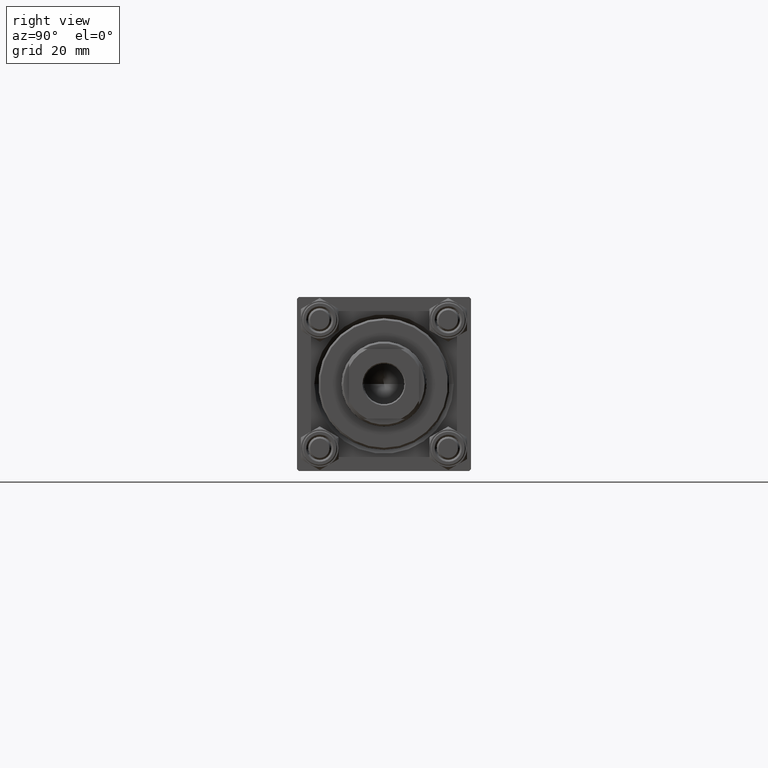
[diagram: clean part render]
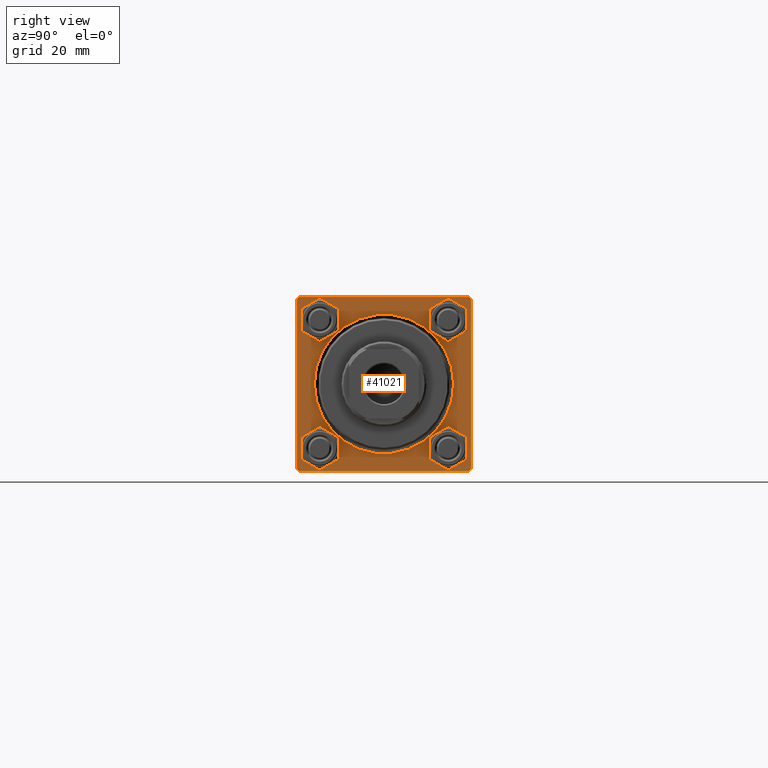
[diagram: same view with one face highlighted and labeled with its STEP entity id]
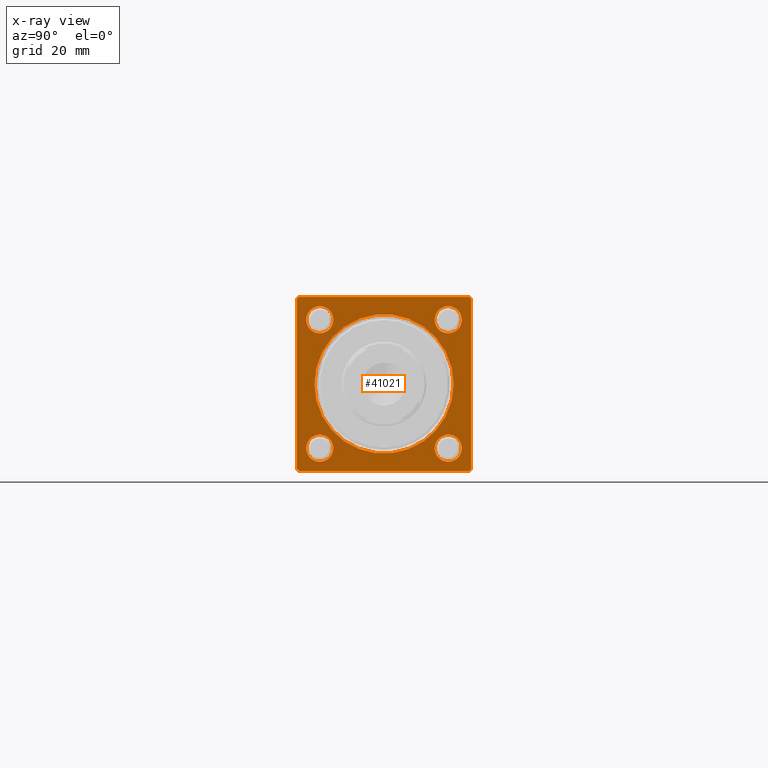
[diagram: x-ray of the same camera — body ghosted, the highlighted face saturated]
A machine part, right view. The second image highlights one B-rep face of the part: STEP entity #41021.
The next image is the same camera in x-ray: the body ghosted, the highlighted face saturated — about 0% of this face is hidden behind the body in this view.
In plain terms, the highlighted planar face has unit normal (-1, 0, -0).
Its self-contained STEP definition (entity closure, byte-faithful):
#72 = AXIS2_PLACEMENT_3D ( 'NONE', #42810, #8394, #39054 ) ;
#338 = DIRECTION ( 'NONE',  ( -1.000000000000000000, 0.000000000000000000, -0.000000000000000000 ) ) ;
#412 = EDGE_CURVE ( 'NONE', #6783, #17887, #46847, .T. ) ;
#778 = CARTESIAN_POINT ( 'NONE',  ( 123.0000000000000142, 22.50000000000000355, -22.49999999999999645 ) ) ;
#889 = ORIENTED_EDGE ( 'NONE', *, *, #28267, .T. ) ;
#1279 = DIRECTION ( 'NONE',  ( 0.000000000000000000, -1.000000000000000000, -7.709882115452476934E-17 ) ) ;
#1864 = EDGE_CURVE ( 'NONE', #10399, #16768, #30447, .T. ) ;
#2045 = CARTESIAN_POINT ( 'NONE',  ( 123.0000000000000142, -16.59999999999999787, 20.10000000000002629 ) ) ;
#2103 = VERTEX_POINT ( 'NONE', #14806 ) ;
#2443 = ORIENTED_EDGE ( 'NONE', *, *, #11817, .F. ) ;
#2541 = CARTESIAN_POINT ( 'NONE',  ( 123.0000000000000142, -21.99999999999998224, -22.50000000000000000 ) ) ;
#2954 = CARTESIAN_POINT ( 'NONE',  ( 123.0000000000000142, 0.000000000000000000, -18.00000000000000355 ) ) ;
#3246 = LINE ( 'NONE', #33926, #35851 ) ;
#3545 = ORIENTED_EDGE ( 'NONE', *, *, #1864, .T. ) ;
#3640 = VERTEX_POINT ( 'NONE', #39633 ) ;
#4103 = CARTESIAN_POINT ( 'NONE',  ( 123.0000000000000142, 16.59999999999999787, -13.09999999999997300 ) ) ;
#4134 = DIRECTION ( 'NONE',  ( -1.000000000000000000, 0.000000000000000000, -0.000000000000000000 ) ) ;
#4185 = EDGE_CURVE ( 'NONE', #37558, #23705, #48530, .T. ) ;
#5583 = EDGE_LOOP ( 'NONE', ( #42220, #889 ) ) ;
#6758 = CIRCLE ( 'NONE', #13989, 3.500000000000031086 ) ;
#6783 = VERTEX_POINT ( 'NONE', #24274 ) ;
#8048 = AXIS2_PLACEMENT_3D ( 'NONE', #41504, #14144, #13894 ) ;
#8057 = ORIENTED_EDGE ( 'NONE', *, *, #48156, .T. ) ;
#8142 = FACE_BOUND ( 'NONE', #26431, .T. ) ;
#8163 = CARTESIAN_POINT ( 'NONE',  ( 123.0000000000000142, 21.99999999999996092, 22.50000000000000355 ) ) ;
#8219 = CARTESIAN_POINT ( 'NONE',  ( 123.0000000000000142, -16.59999999999999787, 16.59999999999999787 ) ) ;
#8315 = EDGE_CURVE ( 'NONE', #2103, #13069, #12559, .T. ) ;
#8394 = DIRECTION ( 'NONE',  ( -1.000000000000000000, 0.000000000000000000, -0.000000000000000000 ) ) ;
#9001 = CARTESIAN_POINT ( 'NONE',  ( 123.0000000000000142, 22.50000000000000355, 21.99999999999997513 ) ) ;
#9090 = AXIS2_PLACEMENT_3D ( 'NONE', #11418, #18715, #34062 ) ;
#9093 = CIRCLE ( 'NONE', #48411, 18.00000000000000355 ) ;
#9819 = CARTESIAN_POINT ( 'NONE',  ( 123.0000000000000142, -16.60000000000000497, -16.60000000000000497 ) ) ;
#10399 = VERTEX_POINT ( 'NONE', #17968 ) ;
#10916 = EDGE_CURVE ( 'NONE', #16768, #6783, #39715, .T. ) ;
#11418 = CARTESIAN_POINT ( 'NONE',  ( 123.0000000000000142, 0.000000000000000000, 0.000000000000000000 ) ) ;
#11432 = CARTESIAN_POINT ( 'NONE',  ( 123.0000000000000142, -21.99999999999999645, -22.50000000000000000 ) ) ;
#11805 = CARTESIAN_POINT ( 'NONE',  ( 123.0000000000000142, 0.000000000000000000, 0.000000000000000000 ) ) ;
#11817 = EDGE_CURVE ( 'NONE', #26687, #23705, #3246, .T. ) ;
#12559 = CIRCLE ( 'NONE', #31830, 3.500000000000031086 ) ;
#13069 = VERTEX_POINT ( 'NONE', #33478 ) ;
#13305 = CARTESIAN_POINT ( 'NONE',  ( 123.0000000000000142, 21.99999999999996092, 22.50000000000000355 ) ) ;
#13337 = CIRCLE ( 'NONE', #41402, 3.499999999999989342 ) ;
#13403 = VERTEX_POINT ( 'NONE', #33172 ) ;
#13541 = CARTESIAN_POINT ( 'NONE',  ( 123.0000000000000142, -16.59999999999999787, 13.09999999999996589 ) ) ;
#13894 = DIRECTION ( 'NONE',  ( 0.000000000000000000, 0.000000000000000000, 1.000000000000000000 ) ) ;
#13989 = AXIS2_PLACEMENT_3D ( 'NONE', #25577, #22049, #14267 ) ;
#14144 = DIRECTION ( 'NONE',  ( -1.000000000000000000, 0.000000000000000000, -0.000000000000000000 ) ) ;
#14267 = DIRECTION ( 'NONE',  ( 0.000000000000000000, 0.000000000000000000, 1.000000000000000000 ) ) ;
#14806 = CARTESIAN_POINT ( 'NONE',  ( 123.0000000000000142, -16.60000000000000497, -20.10000000000003340 ) ) ;
#15712 = DIRECTION ( 'NONE',  ( 0.000000000000000000, 0.7071067811865425767, -0.7071067811865525687 ) ) ;
#15927 = CIRCLE ( 'NONE', #44833, 18.00000000000000355 ) ;
#16260 = CARTESIAN_POINT ( 'NONE',  ( 123.0000000000000142, 22.50000000000000355, 22.50000000000000355 ) ) ;
#16768 = VERTEX_POINT ( 'NONE', #21529 ) ;
#17690 = EDGE_LOOP ( 'NONE', ( #32232, #21156 ) ) ;
#17887 = VERTEX_POINT ( 'NONE', #2541 ) ;
#17968 = CARTESIAN_POINT ( 'NONE',  ( 123.0000000000000142, -21.99999999999998224, 22.49999999999999289 ) ) ;
#18000 = EDGE_CURVE ( 'NONE', #37747, #32104, #15927, .T. ) ;
#18461 = CIRCLE ( 'NONE', #28892, 3.500000000000031086 ) ;
#18629 = DIRECTION ( 'NONE',  ( -0.000000000000000000, -0.7071067811865573427, -0.7071067811865378028 ) ) ;
#18715 = DIRECTION ( 'NONE',  ( -1.000000000000000000, 0.000000000000000000, -0.000000000000000000 ) ) ;
#18980 = CARTESIAN_POINT ( 'NONE',  ( 123.0000000000000142, 0.000000000000000000, 0.000000000000000000 ) ) ;
#19088 = ORIENTED_EDGE ( 'NONE', *, *, #45002, .T. ) ;
#19226 = DIRECTION ( 'NONE',  ( 0.000000000000000000, -0.7071067811865573427, 0.7071067811865378028 ) ) ;
#19449 = DIRECTION ( 'NONE',  ( 0.000000000000000000, 0.000000000000000000, 1.000000000000000000 ) ) ;
#19523 = LINE ( 'NONE', #16260, #32386 ) ;
#19620 = VECTOR ( 'NONE', #18629, 1000.000000000000000 ) ;
#20083 = ORIENTED_EDGE ( 'NONE', *, *, #10916, .T. ) ;
#20431 = ORIENTED_EDGE ( 'NONE', *, *, #36954, .T. ) ;
#21125 = DIRECTION ( 'NONE',  ( -1.000000000000000000, 0.000000000000000000, -0.000000000000000000 ) ) ;
#21156 = ORIENTED_EDGE ( 'NONE', *, *, #21472, .T. ) ;
#21472 = EDGE_CURVE ( 'NONE', #28974, #23081, #18461, .T. ) ;
#21529 = CARTESIAN_POINT ( 'NONE',  ( 123.0000000000000142, -22.49999999999999645, 22.00000000000000711 ) ) ;
#21649 = DIRECTION ( 'NONE',  ( -0.000000000000000000, 0.7071067811865573427, 0.7071067811865378028 ) ) ;
#22024 = ORIENTED_EDGE ( 'NONE', *, *, #44246, .T. ) ;
#22049 = DIRECTION ( 'NONE',  ( -1.000000000000000000, 0.000000000000000000, -0.000000000000000000 ) ) ;
#22149 = CARTESIAN_POINT ( 'NONE',  ( 123.0000000000000142, 16.59999999999999787, 20.09999999999999432 ) ) ;
#22488 = CARTESIAN_POINT ( 'NONE',  ( 123.0000000000000142, 16.59999999999999787, -16.60000000000000497 ) ) ;
#22931 = ORIENTED_EDGE ( 'NONE', *, *, #47665, .F. ) ;
#23081 = VERTEX_POINT ( 'NONE', #13541 ) ;
#23474 = FACE_BOUND ( 'NONE', #29685, .T. ) ;
#23705 = VERTEX_POINT ( 'NONE', #49726 ) ;
#24274 = CARTESIAN_POINT ( 'NONE',  ( 123.0000000000000142, -22.49999999999999645, -21.99999999999997868 ) ) ;
#24570 = DIRECTION ( 'NONE',  ( 0.000000000000000000, 0.000000000000000000, 1.000000000000000000 ) ) ;
#24671 = LINE ( 'NONE', #778, #28580 ) ;
#24823 = CARTESIAN_POINT ( 'NONE',  ( 123.0000000000000142, 16.59999999999999787, 16.60000000000000497 ) ) ;
#25577 = CARTESIAN_POINT ( 'NONE',  ( 123.0000000000000142, 16.59999999999999787, -16.60000000000000497 ) ) ;
#25826 = CIRCLE ( 'NONE', #8048, 3.500000000000031086 ) ;
#26079 = EDGE_CURVE ( 'NONE', #23081, #28974, #25826, .T. ) ;
#26269 = PLANE ( 'NONE',  #9090 ) ;
#26431 = EDGE_LOOP ( 'NONE', ( #33844, #19088 ) ) ;
#26669 = CARTESIAN_POINT ( 'NONE',  ( 123.0000000000000142, -22.49999999999999645, 22.00000000000000711 ) ) ;
#26687 = VERTEX_POINT ( 'NONE', #9001 ) ;
#28267 = EDGE_CURVE ( 'NONE', #13069, #2103, #48230, .T. ) ;
#28580 = VECTOR ( 'NONE', #1279, 1000.000000000000000 ) ;
#28630 = DIRECTION ( 'NONE',  ( 0.000000000000000000, 0.000000000000000000, 1.000000000000000000 ) ) ;
#28892 = AXIS2_PLACEMENT_3D ( 'NONE', #8219, #31354, #34879 ) ;
#28934 = DIRECTION ( 'NONE',  ( 0.000000000000000000, 0.000000000000000000, 1.000000000000000000 ) ) ;
#28974 = VERTEX_POINT ( 'NONE', #2045 ) ;
#29060 = CARTESIAN_POINT ( 'NONE',  ( 123.0000000000000142, 2.204364238465235822E-15, 18.00000000000000355 ) ) ;
#29237 = CIRCLE ( 'NONE', #33256, 3.500000000000031086 ) ;
#29685 = EDGE_LOOP ( 'NONE', ( #44719, #31983 ) ) ;
#29920 = DIRECTION ( 'NONE',  ( 0.000000000000000000, -1.000000000000000000, -2.312964634635742957E-16 ) ) ;
#30447 = LINE ( 'NONE', #26669, #19620 ) ;
#30531 = FACE_OUTER_BOUND ( 'NONE', #39013, .T. ) ;
#30874 = CIRCLE ( 'NONE', #34113, 3.499999999999989342 ) ;
#31275 = FACE_BOUND ( 'NONE', #35756, .T. ) ;
#31354 = DIRECTION ( 'NONE',  ( -1.000000000000000000, 0.000000000000000000, -0.000000000000000000 ) ) ;
#31830 = AXIS2_PLACEMENT_3D ( 'NONE', #9819, #21125, #28934 ) ;
#31983 = ORIENTED_EDGE ( 'NONE', *, *, #34103, .T. ) ;
#32104 = VERTEX_POINT ( 'NONE', #29060 ) ;
#32232 = ORIENTED_EDGE ( 'NONE', *, *, #26079, .T. ) ;
#32386 = VECTOR ( 'NONE', #29920, 1000.000000000000000 ) ;
#33172 = CARTESIAN_POINT ( 'NONE',  ( 123.0000000000000142, 16.59999999999999787, -20.10000000000003340 ) ) ;
#33256 = AXIS2_PLACEMENT_3D ( 'NONE', #22488, #338, #19449 ) ;
#33478 = CARTESIAN_POINT ( 'NONE',  ( 123.0000000000000142, -16.60000000000000497, -13.09999999999997300 ) ) ;
#33844 = ORIENTED_EDGE ( 'NONE', *, *, #48718, .T. ) ;
#33926 = CARTESIAN_POINT ( 'NONE',  ( 123.0000000000000142, 22.50000000000000355, 22.50000000000000355 ) ) ;
#33948 = DIRECTION ( 'NONE',  ( -1.000000000000000000, 0.000000000000000000, -0.000000000000000000 ) ) ;
#34062 = DIRECTION ( 'NONE',  ( -0.000000000000000000, 0.000000000000000000, 1.000000000000000000 ) ) ;
#34103 = EDGE_CURVE ( 'NONE', #32104, #37747, #9093, .T. ) ;
#34113 = AXIS2_PLACEMENT_3D ( 'NONE', #43947, #47457, #28630 ) ;
#34879 = DIRECTION ( 'NONE',  ( 0.000000000000000000, 0.000000000000000000, 1.000000000000000000 ) ) ;
#35642 = VECTOR ( 'NONE', #15712, 999.9999999999998863 ) ;
#35756 = EDGE_LOOP ( 'NONE', ( #22024, #20431 ) ) ;
#35851 = VECTOR ( 'NONE', #44967, 1000.000000000000000 ) ;
#36651 = ORIENTED_EDGE ( 'NONE', *, *, #41599, .T. ) ;
#36716 = DIRECTION ( 'NONE',  ( 0.000000000000000000, 0.000000000000000000, -1.000000000000000000 ) ) ;
#36954 = EDGE_CURVE ( 'NONE', #37244, #13403, #6758, .T. ) ;
#37244 = VERTEX_POINT ( 'NONE', #4103 ) ;
#37558 = VERTEX_POINT ( 'NONE', #41743 ) ;
#37747 = VERTEX_POINT ( 'NONE', #2954 ) ;
#38820 = DIRECTION ( 'NONE',  ( 0.000000000000000000, 0.000000000000000000, 1.000000000000000000 ) ) ;
#39013 = EDGE_LOOP ( 'NONE', ( #20083, #48062, #22931, #41997, #2443, #8057, #36651, #3545 ) ) ;
#39054 = DIRECTION ( 'NONE',  ( 0.000000000000000000, 0.000000000000000000, 1.000000000000000000 ) ) ;
#39633 = CARTESIAN_POINT ( 'NONE',  ( 123.0000000000000142, 16.59999999999999787, 13.10000000000001386 ) ) ;
#39715 = LINE ( 'NONE', #43732, #47129 ) ;
#40137 = DIRECTION ( 'NONE',  ( -1.000000000000000000, 0.000000000000000000, -0.000000000000000000 ) ) ;
#40748 = CARTESIAN_POINT ( 'NONE',  ( 123.0000000000000142, 22.50000000000000355, -22.00000000000001066 ) ) ;
#41021 = ADVANCED_FACE ( 'NONE', ( #42557, #31275, #8142, #46587, #23474, #30531 ), #26269, .F. ) ;
#41402 = AXIS2_PLACEMENT_3D ( 'NONE', #24823, #40137, #24570 ) ;
#41504 = CARTESIAN_POINT ( 'NONE',  ( 123.0000000000000142, -16.59999999999999787, 16.59999999999999787 ) ) ;
#41599 = EDGE_CURVE ( 'NONE', #48113, #10399, #19523, .T. ) ;
#41743 = CARTESIAN_POINT ( 'NONE',  ( 123.0000000000000142, 22.00000000000000355, -22.49999999999999645 ) ) ;
#41997 = ORIENTED_EDGE ( 'NONE', *, *, #4185, .T. ) ;
#42091 = LINE ( 'NONE', #8163, #43812 ) ;
#42220 = ORIENTED_EDGE ( 'NONE', *, *, #8315, .T. ) ;
#42557 = FACE_BOUND ( 'NONE', #5583, .T. ) ;
#42810 = CARTESIAN_POINT ( 'NONE',  ( 123.0000000000000142, -16.60000000000000497, -16.60000000000000497 ) ) ;
#43732 = CARTESIAN_POINT ( 'NONE',  ( 123.0000000000000142, -22.49999999999999645, 22.49999999999999289 ) ) ;
#43812 = VECTOR ( 'NONE', #19226, 1000.000000000000000 ) ;
#43947 = CARTESIAN_POINT ( 'NONE',  ( 123.0000000000000142, 16.59999999999999787, 16.60000000000000497 ) ) ;
#44246 = EDGE_CURVE ( 'NONE', #13403, #37244, #29237, .T. ) ;
#44719 = ORIENTED_EDGE ( 'NONE', *, *, #18000, .T. ) ;
#44833 = AXIS2_PLACEMENT_3D ( 'NONE', #11805, #33948, #49253 ) ;
#44967 = DIRECTION ( 'NONE',  ( 0.000000000000000000, 0.000000000000000000, -1.000000000000000000 ) ) ;
#45002 = EDGE_CURVE ( 'NONE', #48372, #3640, #30874, .T. ) ;
#46587 = FACE_BOUND ( 'NONE', #17690, .T. ) ;
#46847 = LINE ( 'NONE', #11432, #35642 ) ;
#46848 = VECTOR ( 'NONE', #21649, 1000.000000000000000 ) ;
#47129 = VECTOR ( 'NONE', #36716, 1000.000000000000000 ) ;
#47457 = DIRECTION ( 'NONE',  ( -1.000000000000000000, 0.000000000000000000, -0.000000000000000000 ) ) ;
#47665 = EDGE_CURVE ( 'NONE', #37558, #17887, #24671, .T. ) ;
#48062 = ORIENTED_EDGE ( 'NONE', *, *, #412, .T. ) ;
#48113 = VERTEX_POINT ( 'NONE', #13305 ) ;
#48156 = EDGE_CURVE ( 'NONE', #26687, #48113, #42091, .T. ) ;
#48230 = CIRCLE ( 'NONE', #72, 3.500000000000031086 ) ;
#48372 = VERTEX_POINT ( 'NONE', #22149 ) ;
#48411 = AXIS2_PLACEMENT_3D ( 'NONE', #18980, #4134, #38820 ) ;
#48530 = LINE ( 'NONE', #40748, #46848 ) ;
#48718 = EDGE_CURVE ( 'NONE', #3640, #48372, #13337, .T. ) ;
#49253 = DIRECTION ( 'NONE',  ( 0.000000000000000000, 0.000000000000000000, 1.000000000000000000 ) ) ;
#49726 = CARTESIAN_POINT ( 'NONE',  ( 123.0000000000000142, 22.50000000000000355, -21.99999999999999645 ) ) ;